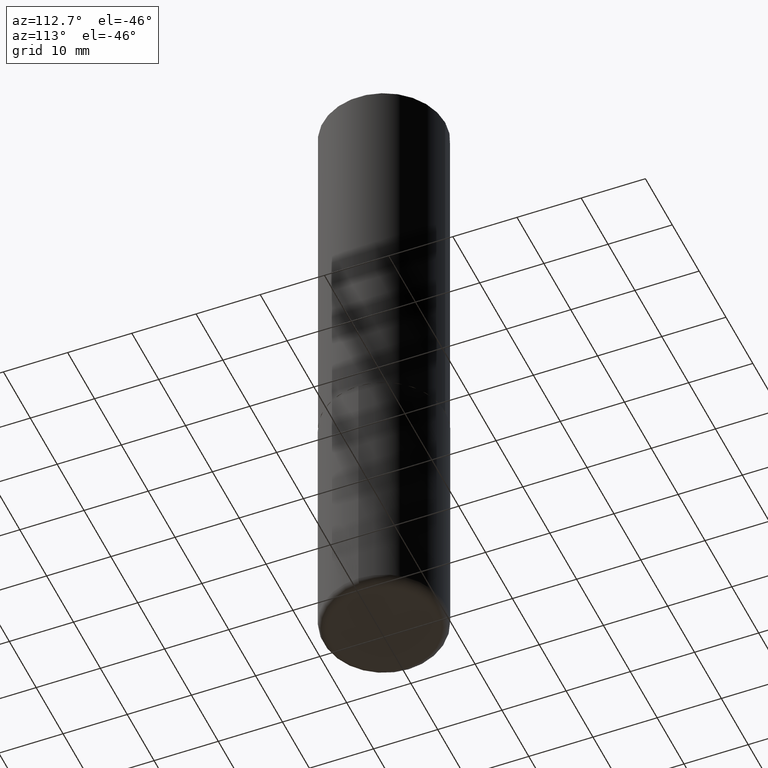
[diagram: clean part render]
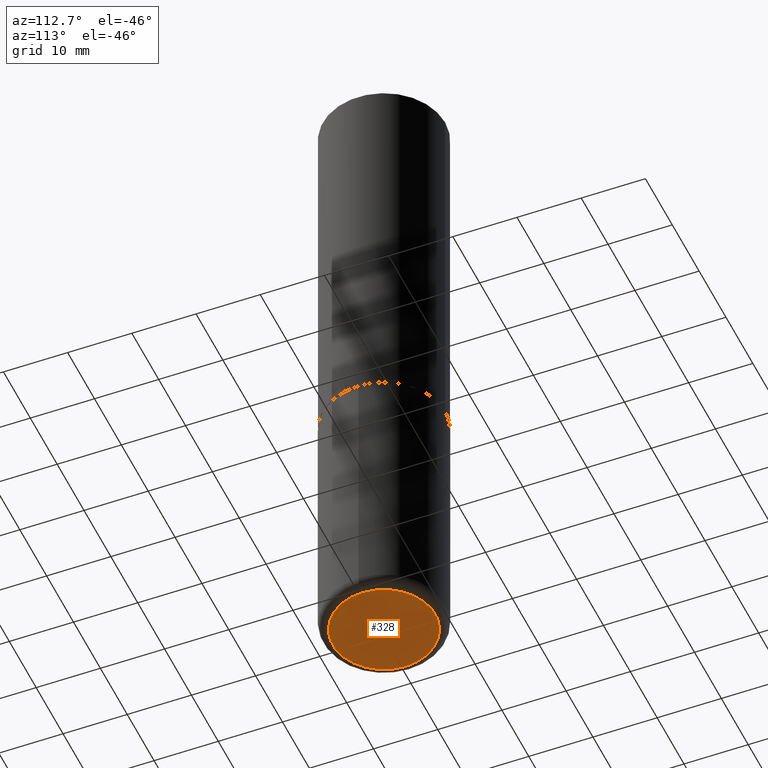
[diagram: same view with one face highlighted and labeled with its STEP entity id]
A machine part, auxiliary view. The second image highlights one B-rep face of the part: STEP entity #328.
In plain terms, the highlighted planar face has unit normal (0, -0, -1).
Its self-contained STEP definition (entity closure, byte-faithful):
#12 = DIRECTION ( 'NONE',  ( 2.438088387897960049E-29, -3.491481338843145188E-15, -1.000000000000000000 ) ) ;
#22 = EDGE_CURVE ( 'NONE', #193, #98, #214, .T. ) ;
#39 = EDGE_CURVE ( 'NONE', #98, #193, #256, .T. ) ;
#63 = ORIENTED_EDGE ( 'NONE', *, *, #22, .F. ) ;
#66 = CARTESIAN_POINT ( 'NONE',  ( 9.781875224740547508E-29, -1.396592535537258391E-14, -4.000000000000000888 ) ) ;
#78 = CARTESIAN_POINT ( 'NONE',  ( 4.937077108964125641E-29, -2.090395200594849049E-14, -4.000000000000000000 ) ) ;
#87 = DIRECTION ( 'NONE',  ( -1.000000000000000000, 6.982962677686265922E-15, -4.876176775795935793E-29 ) ) ;
#98 = VERTEX_POINT ( 'NONE', #236 ) ;
#101 = PLANE ( 'NONE',  #272 ) ;
#121 = DIRECTION ( 'NONE',  ( 1.000000000000000000, -6.982962677686267499E-15, 0.000000000000000000 ) ) ;
#138 = DIRECTION ( 'NONE',  ( -2.445468806185136597E-29, 3.491481338843145583E-15, 1.000000000000000000 ) ) ;
#193 = VERTEX_POINT ( 'NONE', #231 ) ;
#196 = AXIS2_PLACEMENT_3D ( 'NONE', #66, #138, #365 ) ;
#214 = CIRCLE ( 'NONE', #244, 0.3150000000000000577 ) ;
#218 = EDGE_LOOP ( 'NONE', ( #63, #307 ) ) ;
#231 = CARTESIAN_POINT ( 'NONE',  ( 0.3150000000000000577, -1.616555859884375729E-14, -4.000000000000000888 ) ) ;
#236 = CARTESIAN_POINT ( 'NONE',  ( -0.3150000000000000577, -1.140980847683494193E-14, -4.000000000000000888 ) ) ;
#244 = AXIS2_PLACEMENT_3D ( 'NONE', #412, #352, #121 ) ;
#256 = CIRCLE ( 'NONE', #196, 0.3150000000000000577 ) ;
#272 = AXIS2_PLACEMENT_3D ( 'NONE', #78, #12, #87 ) ;
#307 = ORIENTED_EDGE ( 'NONE', *, *, #39, .F. ) ;
#328 = ADVANCED_FACE ( 'NONE', ( #391 ), #101, .T. ) ;
#352 = DIRECTION ( 'NONE',  ( -2.445468806185136597E-29, 3.491481338843145583E-15, 1.000000000000000000 ) ) ;
#365 = DIRECTION ( 'NONE',  ( 1.000000000000000000, -6.982962677686267499E-15, 0.000000000000000000 ) ) ;
#391 = FACE_OUTER_BOUND ( 'NONE', #218, .T. ) ;
#412 = CARTESIAN_POINT ( 'NONE',  ( 9.781875224740547508E-29, -1.396592535537258391E-14, -4.000000000000000888 ) ) ;